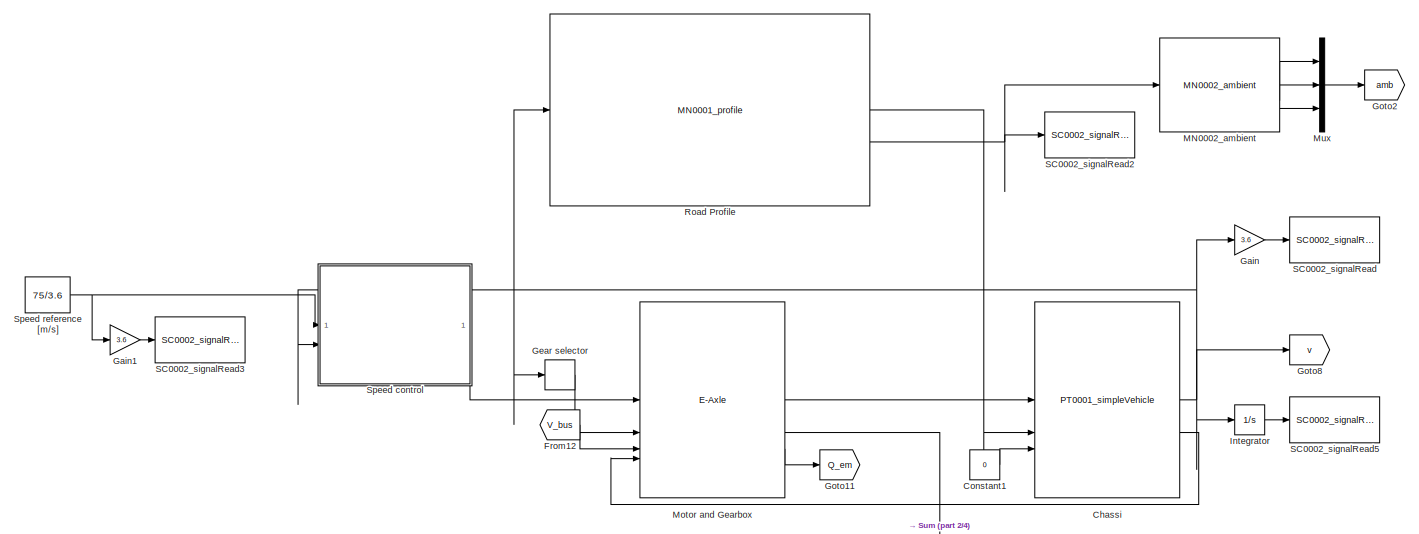
[diagram: root canvas - part 1/4, top center region]
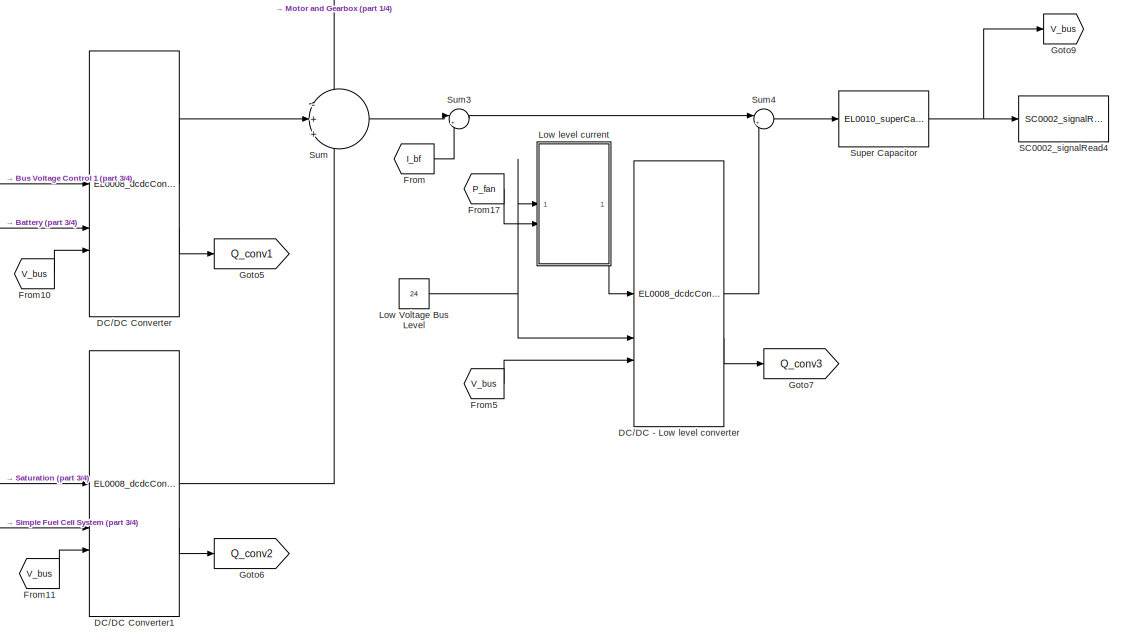
[diagram: root canvas - part 2/4, middle right region]
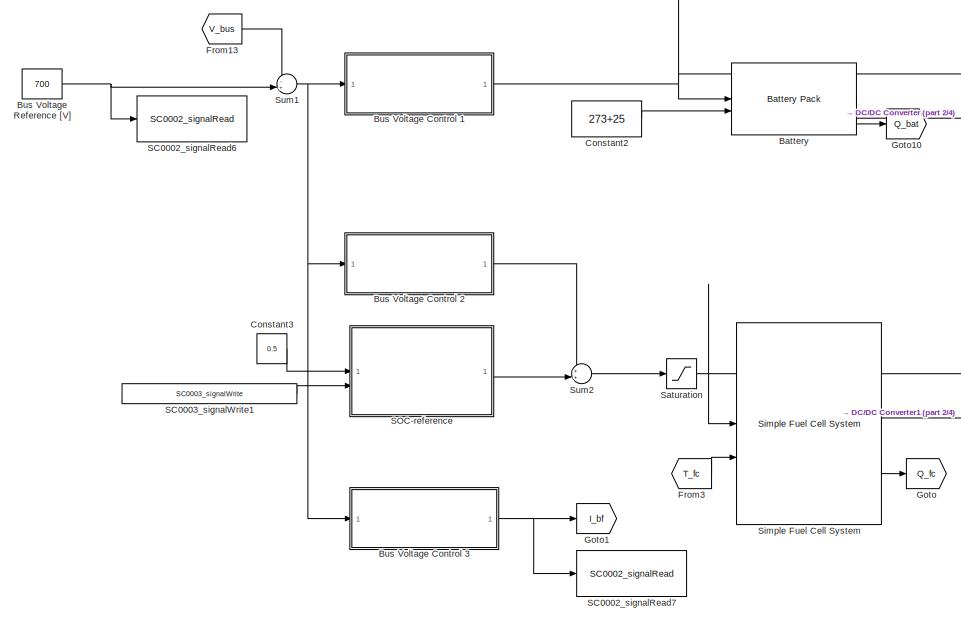
[diagram: root canvas - part 3/4, middle left region]
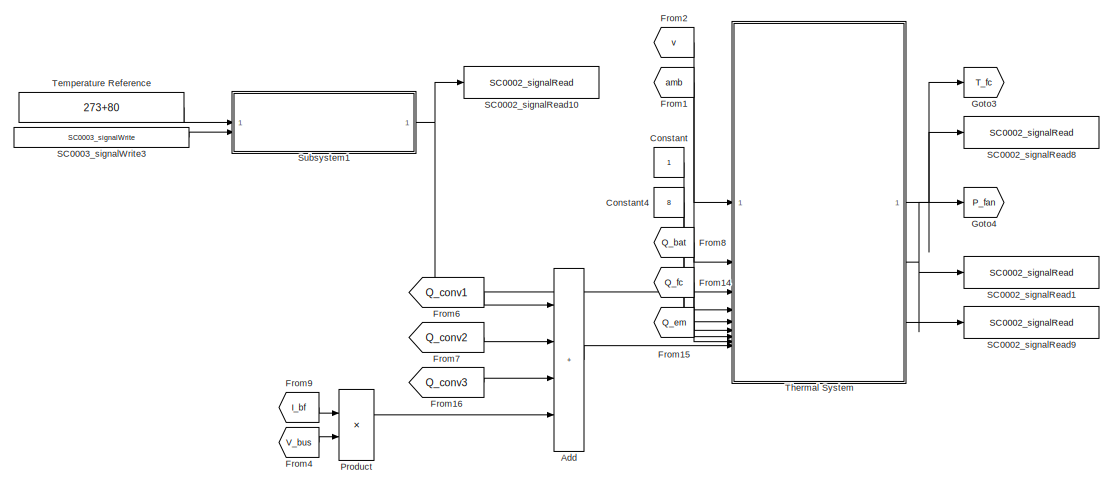
[diagram: root canvas - part 4/4, bottom right region]
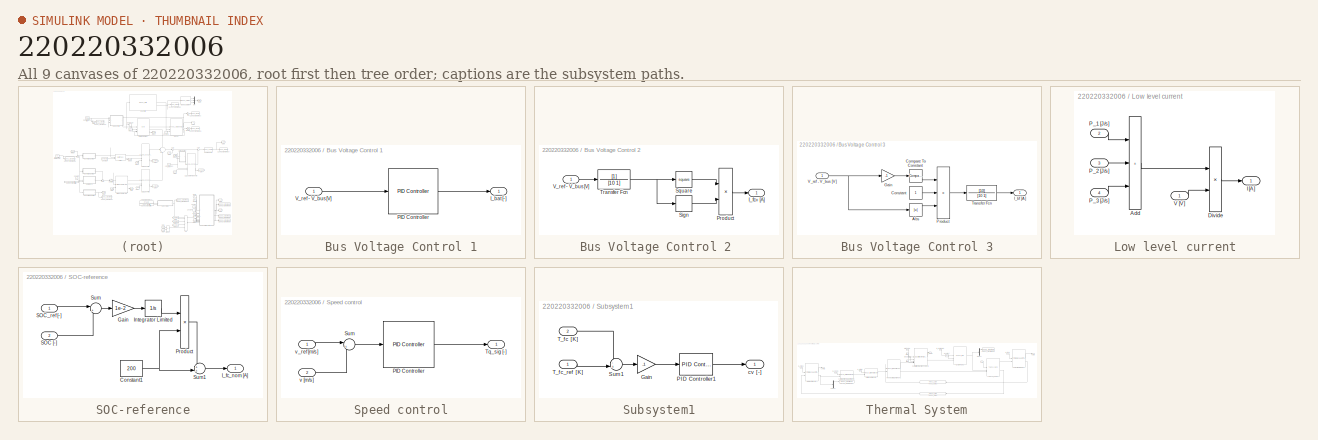
[diagram: thumbnail index - all 9 canvases of the model, root first then tree order]
MODEL slx_220220332006
KIND model
CONFIG AbsTol = auto
CONFIG EnableMultiTasking = off
CONFIG FixedStep = auto
CONFIG MaxStep = 1e-1
CONFIG MinStep = auto
CONFIG RelTol = 1e-4
CONFIG SampleTimeConstraint = Unconstrained
CONFIG SolverName = ode23tb
CONFIG StartTime = 0.0
CONFIG StopTime = 20e3
BLOCK [Sum] Add
  IconShape = rectangular
  Inputs = ++++
BLOCK [Reference] Battery  REF=component_lib/Battery Pack  (lib defined in slx_7b23c5cf3aa6)
  SourceBlock = component_lib/Battery Pack
BLOCK [SubSystem] Bus Voltage Control 1
BLOCK [Outport] Bus Voltage Control 1/I_bat [-]
BLOCK [Reference] Bus Voltage Control 1/PID Controller  REF=slpidlib/PID Controller
  SourceBlock = slpidlib/PID Controller
  SourceType = PID 1dof
BLOCK [Inport] Bus Voltage Control 1/V_ref - V_bus [V]
BLOCK [SubSystem] Bus Voltage Control 2 
BLOCK [Outport] Bus Voltage Control 2 /I_fc+ [A]
BLOCK [Product] Bus Voltage Control 2 /Product
BLOCK [Signum] Bus Voltage Control 2 /Sign
BLOCK [Math] Bus Voltage Control 2 /Square
  Operator = square
BLOCK [TransferFcn] Bus Voltage Control 2 /Transfer Fcn
  Denominator = [10 1]
BLOCK [Inport] Bus Voltage Control 2 /V_ref - V_bus [V]
BLOCK [SubSystem] Bus Voltage Control 3
BLOCK [Abs] Bus Voltage Control 3/Abs
  SaturateOnIntegerOverflow = off
BLOCK [Reference] Bus Voltage Control 3/Compare To Constant  REF=simulink/Logic and Bit
Operations/Compare
To Constant
  SourceBlock = simulink/Logic and Bit\nOperations/Compare\nTo Constant
  SourceType = Compare To Constant
BLOCK [Constant] Bus Voltage Control 3/Constant
BLOCK [Gain] Bus Voltage Control 3/Gain
  Gain = -1
BLOCK [Outport] Bus Voltage Control 3/I_bf [A]
BLOCK [Product] Bus Voltage Control 3/Product
  Inputs = 3
BLOCK [TransferFcn] Bus Voltage Control 3/Transfer Fcn
  Denominator = [10 1]
  Numerator = [10]
BLOCK [Inport] Bus Voltage Control 3/V_ref - V_bus [V]
BLOCK [Constant] Bus Voltage Reference [V]
  Value = 700
BLOCK [Reference] Chassi  REF=component_lib/Powertrain/PT0001_simpleVehicle  (lib defined in slx_7b23c5cf3aa6)
  SourceBlock = component_lib/Powertrain/PT0001_simpleVehicle
BLOCK [Constant] Constant
BLOCK [Constant] Constant1
  Value = 0
BLOCK [Constant] Constant2
  Value = 273+25
BLOCK [Constant] Constant3
  Value = 0.5
BLOCK [Constant] Constant4
  Value = 8
BLOCK [Reference] DC//DC - Low level converter  REF=component_lib/Electrochemistry/EL0008_dcdcConverter  (lib defined in slx_7b23c5cf3aa6)
  SourceBlock = component_lib/Electrochemistry/EL0008_dcdcConverter
BLOCK [Reference] DC//DC Converter  REF=component_lib/Electrochemistry/EL0008_dcdcConverter  (lib defined in slx_7b23c5cf3aa6)
  SourceBlock = component_lib/Electrochemistry/EL0008_dcdcConverter
BLOCK [Reference] DC//DC Converter1  REF=component_lib/Electrochemistry/EL0008_dcdcConverter  (lib defined in slx_7b23c5cf3aa6)
  SourceBlock = component_lib/Electrochemistry/EL0008_dcdcConverter
BLOCK [From] From
  GotoTag = I_bf
BLOCK [From] From1
  GotoTag = amb
BLOCK [From] From10
  GotoTag = V_bus
BLOCK [From] From11
  GotoTag = V_bus
BLOCK [From] From12
  GotoTag = V_bus
BLOCK [From] From13
  GotoTag = V_bus
BLOCK [From] From14
  GotoTag = Q_fc
BLOCK [From] From15
  GotoTag = Q_em
BLOCK [From] From16
  GotoTag = Q_conv3
BLOCK [From] From17
  GotoTag = P_fan
BLOCK [From] From2
  GotoTag = v
BLOCK [From] From3
  GotoTag = T_fc
BLOCK [From] From4
  GotoTag = V_bus
BLOCK [From] From5
  GotoTag = V_bus
BLOCK [From] From6
  GotoTag = Q_conv1
BLOCK [From] From7
  GotoTag = Q_conv2
BLOCK [From] From8
  GotoTag = Q_bat
BLOCK [From] From9
  GotoTag = I_bf
BLOCK [Gain] Gain
  Gain = 3.6
BLOCK [Gain] Gain1
  Gain = 3.6
BLOCK [Relay] Gear selector
  OffOutputValue = 3
  OffSwitchValue = 21.5
  OnOutputValue = 4
  OnSwitchValue = 22
BLOCK [Goto] Goto
  GotoTag = Q_fc
BLOCK [Goto] Goto1
  GotoTag = I_bf
BLOCK [Goto] Goto10
  GotoTag = Q_bat
BLOCK [Goto] Goto11
  GotoTag = Q_em
BLOCK [Goto] Goto2
  GotoTag = amb
BLOCK [Goto] Goto3
  GotoTag = T_fc
BLOCK [Goto] Goto4
  GotoTag = P_fan
BLOCK [Goto] Goto5
  GotoTag = Q_conv1
BLOCK [Goto] Goto6
  GotoTag = Q_conv2
BLOCK [Goto] Goto7
  GotoTag = Q_conv3
BLOCK [Goto] Goto8
  GotoTag = v
BLOCK [Goto] Goto9
  GotoTag = V_bus
BLOCK [Integrator] Integrator
BLOCK [Constant] Low Voltage Bus Level
  Value = 24
BLOCK [SubSystem] Low level current
BLOCK [Sum] Low level current/Add
  IconShape = rectangular
  Inputs = +++
BLOCK [Product] Low level current/Divide
  Inputs = */
BLOCK [Outport] Low level current/I [A]
BLOCK [Inport] Low level current/P_1 [J//s]
  Port = 2
BLOCK [Inport] Low level current/P_2 [J//s]
  Port = 3
BLOCK [Inport] Low level current/P_3 [J//s]
  Port = 4
BLOCK [Inport] Low level current/V [V]
BLOCK [Reference] MN0002_ambient  REF=component_lib/Mission/MN0002_ambient  (lib defined in slx_7b23c5cf3aa6)
  SourceBlock = component_lib/Mission/MN0002_ambient
BLOCK [Reference] Motor and Gearbox  REF=component_lib/E-Axle  (lib defined in slx_7b23c5cf3aa6)
  SourceBlock = component_lib/E-Axle
BLOCK [Mux] Mux
  DisplayOption = bar
  Inputs = 3
BLOCK [Product] Product
BLOCK [Reference] Road Profile  REF=component_lib/Mission/MN0001_profile  (lib defined in slx_7b23c5cf3aa6)
  SourceBlock = component_lib/Mission/MN0001_profile
BLOCK [Reference] SC0002_signalRead  REF=component_lib/Data & Control/SC0002_signalRead  (lib defined in slx_7b23c5cf3aa6)
  SourceBlock = component_lib/Data & Control/SC0002_signalRead
BLOCK [Reference] SC0002_signalRead1  REF=component_lib/Data & Control/SC0002_signalRead  (lib defined in slx_7b23c5cf3aa6)
  SourceBlock = component_lib/Data & Control/SC0002_signalRead
BLOCK [Reference] SC0002_signalRead10  REF=component_lib/Data & Control/SC0002_signalRead  (lib defined in slx_7b23c5cf3aa6)
  SourceBlock = component_lib/Data & Control/SC0002_signalRead
BLOCK [Reference] SC0002_signalRead2  REF=component_lib/Data & Control/SC0002_signalRead  (lib defined in slx_7b23c5cf3aa6)
  SourceBlock = component_lib/Data & Control/SC0002_signalRead
BLOCK [Reference] SC0002_signalRead3  REF=component_lib/Data & Control/SC0002_signalRead  (lib defined in slx_7b23c5cf3aa6)
  SourceBlock = component_lib/Data & Control/SC0002_signalRead
BLOCK [Reference] SC0002_signalRead4  REF=component_lib/Data & Control/SC0002_signalRead  (lib defined in slx_7b23c5cf3aa6)
  SourceBlock = component_lib/Data & Control/SC0002_signalRead
BLOCK [Reference] SC0002_signalRead5  REF=component_lib/Data & Control/SC0002_signalRead  (lib defined in slx_7b23c5cf3aa6)
  SourceBlock = component_lib/Data & Control/SC0002_signalRead
BLOCK [Reference] SC0002_signalRead6  REF=component_lib/Data & Control/SC0002_signalRead  (lib defined in slx_7b23c5cf3aa6)
  SourceBlock = component_lib/Data & Control/SC0002_signalRead
BLOCK [Reference] SC0002_signalRead7  REF=component_lib/Data & Control/SC0002_signalRead  (lib defined in slx_7b23c5cf3aa6)
  SourceBlock = component_lib/Data & Control/SC0002_signalRead
BLOCK [Reference] SC0002_signalRead8  REF=component_lib/Data & Control/SC0002_signalRead  (lib defined in slx_7b23c5cf3aa6)
  SourceBlock = component_lib/Data & Control/SC0002_signalRead
BLOCK [Reference] SC0002_signalRead9  REF=component_lib/Data & Control/SC0002_signalRead  (lib defined in slx_7b23c5cf3aa6)
  SourceBlock = component_lib/Data & Control/SC0002_signalRead
BLOCK [Reference] SC0003_signalWrite1  REF=component_lib/Data & Control/SC0003_signalWrite  (lib defined in slx_7b23c5cf3aa6)
  SourceBlock = component_lib/Data & Control/SC0003_signalWrite
BLOCK [Reference] SC0003_signalWrite3  REF=component_lib/Data & Control/SC0003_signalWrite  (lib defined in slx_7b23c5cf3aa6)
  SourceBlock = component_lib/Data & Control/SC0003_signalWrite
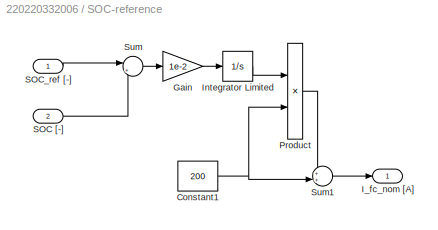
BLOCK [SubSystem] SOC-reference
BLOCK [Constant] SOC-reference/Constant1
  Value = 200
BLOCK [Gain] SOC-reference/Gain
  Gain = 1e-2
BLOCK [Outport] SOC-reference/I_fc_nom [A]
BLOCK [Integrator] SOC-reference/Integrator Limited
  LimitOutput = on
  LowerSaturationLimit = -1
  UpperSaturationLimit = 1
BLOCK [Product] SOC-reference/Product
BLOCK [Inport] SOC-reference/SOC [-]
  Port = 2
BLOCK [Inport] SOC-reference/SOC_ref [-]
BLOCK [Sum] SOC-reference/Sum
  Inputs = |+-
BLOCK [Sum] SOC-reference/Sum1
  Inputs = ++|
BLOCK [Saturate] Saturation
  LowerLimit = 20
  UpperLimit = 600
BLOCK [Reference] Simple Fuel Cell System  REF=component_lib/Simple Fuel Cell System  (lib defined in slx_7b23c5cf3aa6)
  SourceBlock = component_lib/Simple Fuel Cell System
BLOCK [SubSystem] Speed control
BLOCK [Reference] Speed control/PID Controller  REF=slpidlib/PID Controller
  SourceBlock = slpidlib/PID Controller
  SourceType = PID 1dof
BLOCK [Sum] Speed control/Sum
  Inputs = |+-
BLOCK [Outport] Speed control/Tq_sig [-]
BLOCK [Inport] Speed control/v [m//s]
  Port = 2
BLOCK [Inport] Speed control/v_ref [m//s]
BLOCK [Constant] Speed reference [m//s]
  Value = 75/3.6
BLOCK [SubSystem] Subsystem1
BLOCK [Gain] Subsystem1/Gain
  Gain = -1
BLOCK [Reference] Subsystem1/PID Controller1  REF=slpidlib/PID Controller
  SourceBlock = slpidlib/PID Controller
  SourceType = PID 1dof
BLOCK [Sum] Subsystem1/Sum1
  Inputs = -+|
BLOCK [Inport] Subsystem1/T_fc [K]
  Port = 2
BLOCK [Inport] Subsystem1/T_fc_ref [K]
BLOCK [Outport] Subsystem1/cv [-]
BLOCK [Sum] Sum
  Inputs = -++
BLOCK [Sum] Sum1
  Inputs = -+|
BLOCK [Sum] Sum2
  Inputs = ++|
BLOCK [Sum] Sum3
  Inputs = |+-
BLOCK [Sum] Sum4
  Inputs = |+-
BLOCK [Reference] Super Capacitor  REF=component_lib/Electrochemistry/EL0010_superCapacitor  (lib defined in slx_7b23c5cf3aa6)
  SourceBlock = component_lib/Electrochemistry/EL0010_superCapacitor
BLOCK [Constant] Temperature Reference
  NameLocation = top
  Value = 273+80
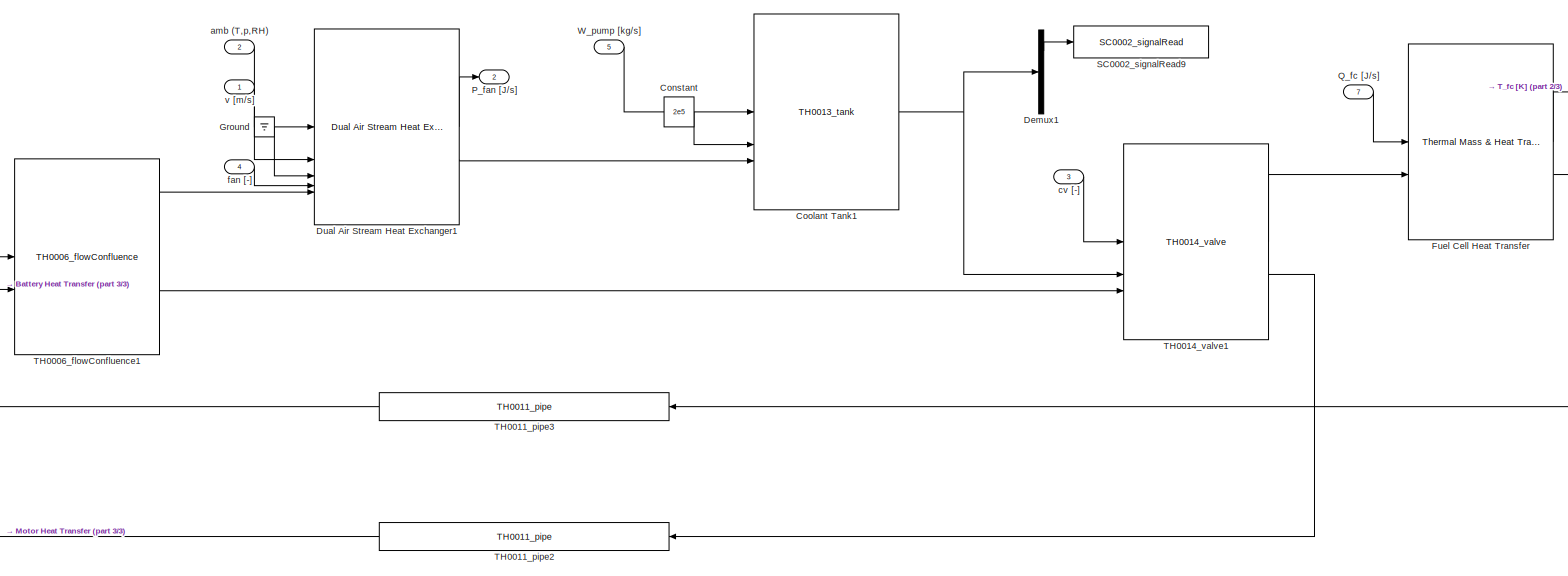
[diagram: Thermal System - part 1/3, center side, full height]
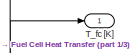
[diagram: Thermal System - part 2/3, top right region]
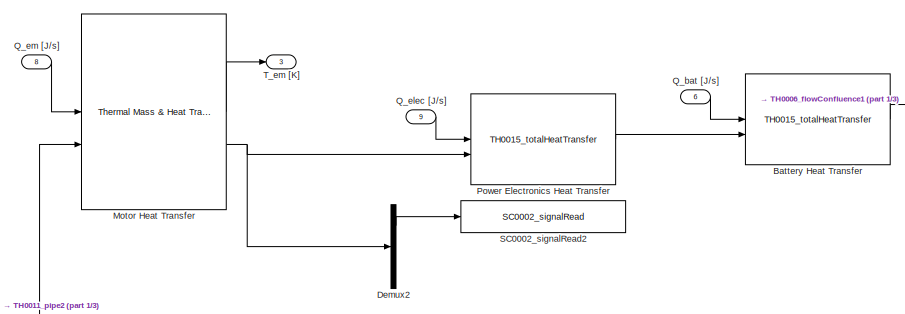
[diagram: Thermal System - part 3/3, middle left region]
BLOCK [SubSystem] Thermal System
BLOCK [Reference] Thermal System/Battery Heat Transfer  REF=component_lib/Thermal Systems/TH0015_totalHeatTransfer  (lib defined in slx_7b23c5cf3aa6)
  SourceBlock = component_lib/Thermal Systems/TH0015_totalHeatTransfer
BLOCK [Constant] Thermal System/Constant
  Value = 2e5
BLOCK [Reference] Thermal System/Coolant Tank1  REF=component_lib/Thermal Systems/TH0013_tank  (lib defined in slx_7b23c5cf3aa6)
  SourceBlock = component_lib/Thermal Systems/TH0013_tank
BLOCK [Demux] Thermal System/Demux1
  Outputs = 3
BLOCK [Demux] Thermal System/Demux2
  Outputs = 3
BLOCK [Reference] Thermal System/Dual Air Stream Heat Exchanger1  REF=component_lib/Dual Air Stream Heat Exchanger  (lib defined in slx_7b23c5cf3aa6)
  SourceBlock = component_lib/Dual Air Stream Heat Exchanger
BLOCK [Reference] Thermal System/Fuel Cell Heat Transfer  REF=component_lib/Thermal Mass & Heat Transfer  (lib defined in slx_7b23c5cf3aa6)
  SourceBlock = component_lib/Thermal Mass & Heat Transfer
BLOCK [Ground] Thermal System/Ground
BLOCK [Reference] Thermal System/Motor Heat Transfer  REF=component_lib/Thermal Mass & Heat Transfer  (lib defined in slx_7b23c5cf3aa6)
  SourceBlock = component_lib/Thermal Mass & Heat Transfer
BLOCK [Outport] Thermal System/P_fan [J//s]
  Port = 2
BLOCK [Reference] Thermal System/Power Electronics Heat Transfer  REF=component_lib/Thermal Systems/TH0015_totalHeatTransfer  (lib defined in slx_7b23c5cf3aa6)
  SourceBlock = component_lib/Thermal Systems/TH0015_totalHeatTransfer
BLOCK [Inport] Thermal System/Q_bat [J//s]
  Port = 6
BLOCK [Inport] Thermal System/Q_elec [J//s]
  Port = 9
BLOCK [Inport] Thermal System/Q_em [J//s]
  Port = 8
BLOCK [Inport] Thermal System/Q_fc [J//s]
  Port = 7
BLOCK [Reference] Thermal System/SC0002_signalRead2  REF=component_lib/Data & Control/SC0002_signalRead  (lib defined in slx_7b23c5cf3aa6)
  SourceBlock = component_lib/Data & Control/SC0002_signalRead
BLOCK [Reference] Thermal System/SC0002_signalRead9  REF=component_lib/Data & Control/SC0002_signalRead  (lib defined in slx_7b23c5cf3aa6)
  SourceBlock = component_lib/Data & Control/SC0002_signalRead
BLOCK [Reference] Thermal System/TH0006_flowConfluence1  REF=component_lib/Thermal Systems/TH0006_flowConfluence  (lib defined in slx_7b23c5cf3aa6)
  SourceBlock = component_lib/Thermal Systems/TH0006_flowConfluence
BLOCK [Reference] Thermal System/TH0011_pipe2  REF=component_lib/Thermal Systems/TH0011_pipe  (lib defined in slx_7b23c5cf3aa6)
  NameLocation = top
  SourceBlock = component_lib/Thermal Systems/TH0011_pipe
BLOCK [Reference] Thermal System/TH0011_pipe3  REF=component_lib/Thermal Systems/TH0011_pipe  (lib defined in slx_7b23c5cf3aa6)
  NameLocation = top
  SourceBlock = component_lib/Thermal Systems/TH0011_pipe
BLOCK [Reference] Thermal System/TH0014_valve1  REF=component_lib/Thermal Systems/TH0014_valve  (lib defined in slx_7b23c5cf3aa6)
  SourceBlock = component_lib/Thermal Systems/TH0014_valve
BLOCK [Outport] Thermal System/T_em [K]
  Port = 3
BLOCK [Outport] Thermal System/T_fc [K]
BLOCK [Inport] Thermal System/W_pump [kg//s]
  Port = 5
BLOCK [Inport] Thermal System/amb (T,p,RH)
  Port = 2
BLOCK [Inport] Thermal System/cv [-]
  Port = 3
BLOCK [Inport] Thermal System/fan [-]
  Port = 4
BLOCK [Inport] Thermal System/v [m//s]
LINE Add:1 -> Thermal System:9
LINE Battery:1 -> DC//DC Converter:2
LINE Battery:3 -> Goto10:1
LINE Bus Voltage Control 1/PID Controller:1 -> Bus Voltage Control 1/I_bat [-]:1
LINE Bus Voltage Control 1/V_ref - V_bus [V]:1 -> Bus Voltage Control 1/PID Controller:1
NET Bus Voltage Control 1:1 -> Battery:1, DC//DC Converter:1
LINE Bus Voltage Control 2 /Product:1 -> Bus Voltage Control 2 /I_fc+ [A]:1
LINE Bus Voltage Control 2 /Sign:1 -> Bus Voltage Control 2 /Product:2
LINE Bus Voltage Control 2 /Square:1 -> Bus Voltage Control 2 /Product:1
NET Bus Voltage Control 2 /Transfer Fcn:1 -> Bus Voltage Control 2 /Sign:1, Bus Voltage Control 2 /Square:1
LINE Bus Voltage Control 2 /V_ref - V_bus [V]:1 -> Bus Voltage Control 2 /Transfer Fcn:1
LINE Bus Voltage Control 2 :1 -> Sum2:1
LINE Bus Voltage Control 3/Abs:1 -> Bus Voltage Control 3/Product:3
LINE Bus Voltage Control 3/Compare To Constant:1 -> Bus Voltage Control 3/Product:1
LINE Bus Voltage Control 3/Constant:1 -> Bus Voltage Control 3/Product:2
LINE Bus Voltage Control 3/Gain:1 -> Bus Voltage Control 3/Compare To Constant:1
LINE Bus Voltage Control 3/Product:1 -> Bus Voltage Control 3/Transfer Fcn:1
LINE Bus Voltage Control 3/Transfer Fcn:1 -> Bus Voltage Control 3/I_bf [A]:1
NET Bus Voltage Control 3/V_ref - V_bus [V]:1 -> Bus Voltage Control 3/Abs:1, Bus Voltage Control 3/Gain:1
NET Bus Voltage Control 3:1 -> Goto1:1, SC0002_signalRead7:1
NET Bus Voltage Reference [V]:1 -> SC0002_signalRead6:1, Sum1:2
NET Chassi:1 -> Gain:1, Gear selector:1, Goto8:1, Integrator:1, Road Profile:1, Speed control:2
LINE Chassi:2 -> Motor and Gearbox:4
LINE Constant1:1 -> Chassi:3
LINE Constant2:1 -> Battery:2
LINE Constant3:1 -> SOC-reference:1
LINE Constant4:1 -> Thermal System:5
LINE Constant:1 -> Thermal System:4
LINE DC//DC - Low level converter:1 -> Sum4:2
LINE DC//DC - Low level converter:2 -> Goto7:1
LINE DC//DC Converter1:1 -> Sum:3
LINE DC//DC Converter1:2 -> Goto6:1
LINE DC//DC Converter:1 -> Sum:2
LINE DC//DC Converter:2 -> Goto5:1
LINE From10:1 -> DC//DC Converter:3
LINE From11:1 -> DC//DC Converter1:3
LINE From12:1 -> Motor and Gearbox:3
LINE From13:1 -> Sum1:1
LINE From14:1 -> Thermal System:7
LINE From15:1 -> Thermal System:8
LINE From16:1 -> Add:3
LINE From17:1 -> Low level current:2
LINE From1:1 -> Thermal System:2
LINE From2:1 -> Thermal System:1
LINE From3:1 -> Simple Fuel Cell System:2
LINE From4:1 -> Product:2
LINE From5:1 -> DC//DC - Low level converter:3
LINE From6:1 -> Add:1
LINE From7:1 -> Add:2
LINE From8:1 -> Thermal System:6
LINE From9:1 -> Product:1
LINE From:1 -> Sum3:2
LINE Gain1:1 -> SC0002_signalRead3:1
LINE Gain:1 -> SC0002_signalRead:1
LINE Gear selector:1 -> Motor and Gearbox:2
LINE Integrator:1 -> SC0002_signalRead5:1
NET Low Voltage Bus Level:1 -> DC//DC - Low level converter:2, Low level current:1
LINE Low level current/Add:1 -> Low level current/Divide:1
LINE Low level current/Divide:1 -> Low level current/I [A]:1
LINE Low level current/P_1 [J//s]:1 -> Low level current/Add:1
LINE Low level current/P_2 [J//s]:1 -> Low level current/Add:2
LINE Low level current/P_3 [J//s]:1 -> Low level current/Add:3
LINE Low level current/V [V]:1 -> Low level current/Divide:2
LINE Low level current:1 -> DC//DC - Low level converter:1
LINE MN0002_ambient:1 -> Mux:1
LINE MN0002_ambient:2 -> Mux:2
LINE MN0002_ambient:3 -> Mux:3
LINE Motor and Gearbox:1 -> Chassi:1
LINE Motor and Gearbox:2 -> Sum:1
LINE Motor and Gearbox:3 -> Goto11:1
LINE Mux:1 -> Goto2:1
LINE Product:1 -> Add:4
LINE Road Profile:1 -> Chassi:2
NET Road Profile:2 -> MN0002_ambient:1, SC0002_signalRead2:1
LINE SC0003_signalWrite1:1 -> SOC-reference:2
LINE SC0003_signalWrite3:1 -> Subsystem1:2
NET SOC-reference/Constant1:1 -> SOC-reference/Product:2, SOC-reference/Sum1:2
LINE SOC-reference/Gain:1 -> SOC-reference/Integrator Limited:1
LINE SOC-reference/Integrator Limited:1 -> SOC-reference/Product:1
LINE SOC-reference/Product:1 -> SOC-reference/Sum1:1
LINE SOC-reference/SOC [-]:1 -> SOC-reference/Sum:2
LINE SOC-reference/SOC_ref [-]:1 -> SOC-reference/Sum:1
LINE SOC-reference/Sum1:1 -> SOC-reference/I_fc_nom [A]:1
LINE SOC-reference/Sum:1 -> SOC-reference/Gain:1
LINE SOC-reference:1 -> Sum2:2
NET Saturation:1 -> DC//DC Converter1:1, Simple Fuel Cell System:1
LINE Simple Fuel Cell System:1 -> DC//DC Converter1:2
LINE Simple Fuel Cell System:2 -> Goto:1
LINE Speed control/PID Controller:1 -> Speed control/Tq_sig [-]:1
LINE Speed control/Sum:1 -> Speed control/PID Controller:1
LINE Speed control/v [m//s]:1 -> Speed control/Sum:2
LINE Speed control/v_ref [m//s]:1 -> Speed control/Sum:1
LINE Speed control:1 -> Motor and Gearbox:1
NET Speed reference [m//s]:1 -> Gain1:1, Speed control:1
LINE Subsystem1/Gain:1 -> Subsystem1/PID Controller1:1
LINE Subsystem1/PID Controller1:1 -> Subsystem1/cv [-]:1
LINE Subsystem1/Sum1:1 -> Subsystem1/Gain:1
LINE Subsystem1/T_fc [K]:1 -> Subsystem1/Sum1:1
LINE Subsystem1/T_fc_ref [K]:1 -> Subsystem1/Sum1:2
NET Subsystem1:1 -> SC0002_signalRead10:1, Thermal System:3
NET Sum1:1 -> Bus Voltage Control 1:1, Bus Voltage Control 2 :1, Bus Voltage Control 3:1
LINE Sum2:1 -> Saturation:1
LINE Sum3:1 -> Sum4:1
LINE Sum4:1 -> Super Capacitor:1
LINE Sum:1 -> Sum3:1
NET Super Capacitor:1 -> Goto9:1, SC0002_signalRead4:1
LINE Temperature Reference:1 -> Subsystem1:1
LINE Thermal System/Battery Heat Transfer:1 -> Thermal System/TH0006_flowConfluence1:2
LINE Thermal System/Constant:1 -> Thermal System/Coolant Tank1:2
NET Thermal System/Coolant Tank1:1 -> Thermal System/Demux1:1, Thermal System/TH0014_valve1:2
LINE Thermal System/Demux1:1 -> Thermal System/SC0002_signalRead9:1
LINE Thermal System/Demux2:1 -> Thermal System/SC0002_signalRead2:1
LINE Thermal System/Dual Air Stream Heat Exchanger1:1 -> Thermal System/P_fan [J//s]:1
LINE Thermal System/Dual Air Stream Heat Exchanger1:2 -> Thermal System/Coolant Tank1:3
LINE Thermal System/Fuel Cell Heat Transfer:1 -> Thermal System/T_fc [K]:1
LINE Thermal System/Fuel Cell Heat Transfer:2 -> Thermal System/TH0011_pipe3:1
LINE Thermal System/Ground:1 -> Thermal System/Dual Air Stream Heat Exchanger1:3
LINE Thermal System/Motor Heat Transfer:1 -> Thermal System/T_em [K]:1
NET Thermal System/Motor Heat Transfer:2 -> Thermal System/Demux2:1, Thermal System/Power Electronics Heat Transfer:2
LINE Thermal System/Power Electronics Heat Transfer:1 -> Thermal System/Battery Heat Transfer:2
LINE Thermal System/Q_bat [J//s]:1 -> Thermal System/Battery Heat Transfer:1
LINE Thermal System/Q_elec [J//s]:1 -> Thermal System/Power Electronics Heat Transfer:1
LINE Thermal System/Q_em [J//s]:1 -> Thermal System/Motor Heat Transfer:1
LINE Thermal System/Q_fc [J//s]:1 -> Thermal System/Fuel Cell Heat Transfer:1
LINE Thermal System/TH0006_flowConfluence1:1 -> Thermal System/Dual Air Stream Heat Exchanger1:5
LINE Thermal System/TH0006_flowConfluence1:2 -> Thermal System/TH0014_valve1:3
LINE Thermal System/TH0011_pipe2:1 -> Thermal System/Motor Heat Transfer:2
LINE Thermal System/TH0011_pipe3:1 -> Thermal System/TH0006_flowConfluence1:1
LINE Thermal System/TH0014_valve1:1 -> Thermal System/Fuel Cell Heat Transfer:2
LINE Thermal System/TH0014_valve1:2 -> Thermal System/TH0011_pipe2:1
LINE Thermal System/W_pump [kg//s]:1 -> Thermal System/Coolant Tank1:1
LINE Thermal System/amb (T,p,RH):1 -> Thermal System/Dual Air Stream Heat Exchanger1:1
LINE Thermal System/cv [-]:1 -> Thermal System/TH0014_valve1:1
LINE Thermal System/fan [-]:1 -> Thermal System/Dual Air Stream Heat Exchanger1:4
LINE Thermal System/v [m//s]:1 -> Thermal System/Dual Air Stream Heat Exchanger1:2
NET Thermal System:1 -> Goto3:1, SC0002_signalRead8:1
NET Thermal System:2 -> Goto4:1, SC0002_signalRead1:1
LINE Thermal System:3 -> SC0002_signalRead9:1
note: NET lines group one-source signal fan-out (src -> all destinations, sorted); 1:1 wires keep LINE
